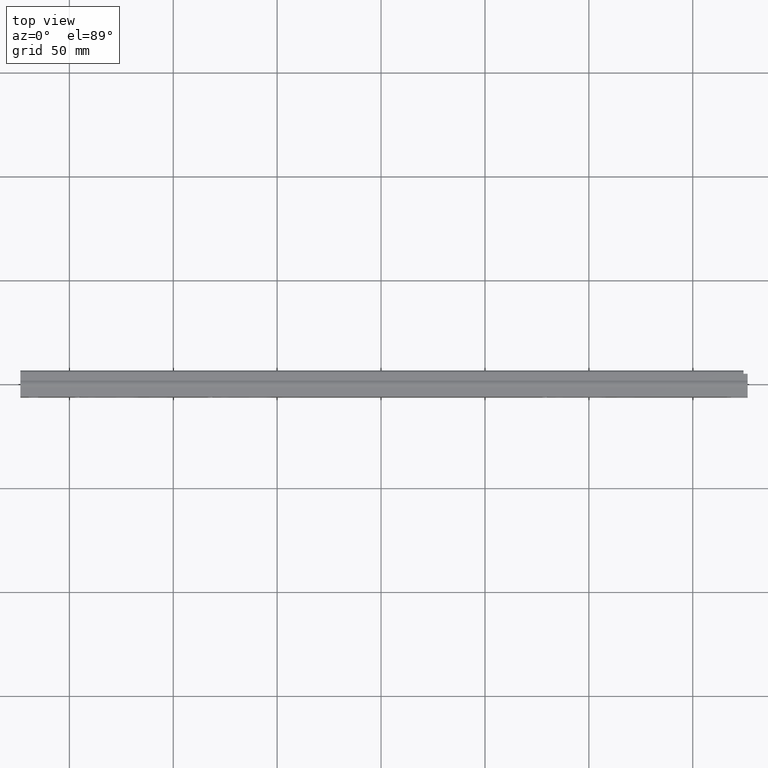
[diagram: clean part render]
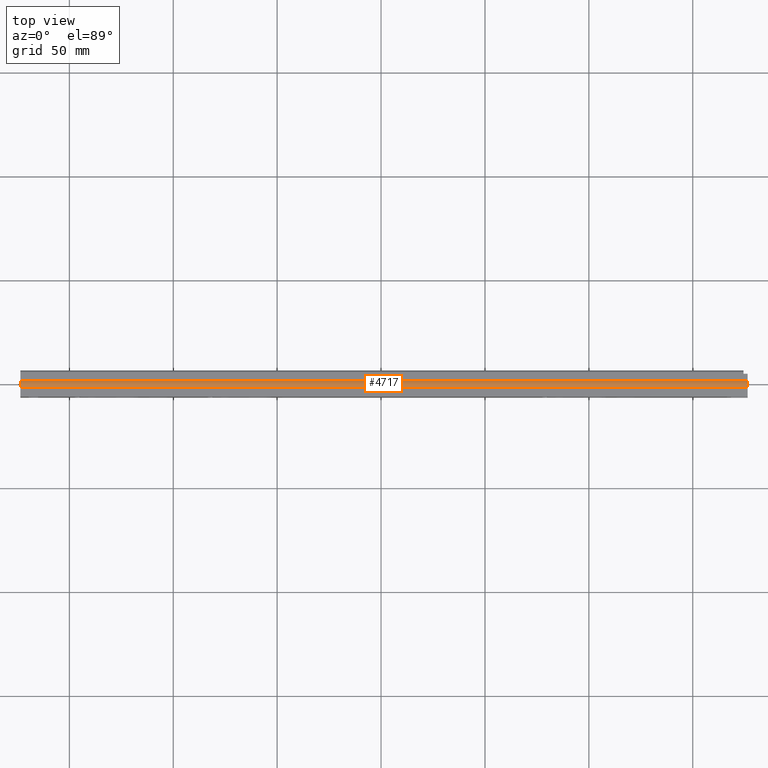
[diagram: same view with one face highlighted and labeled with its STEP entity id]
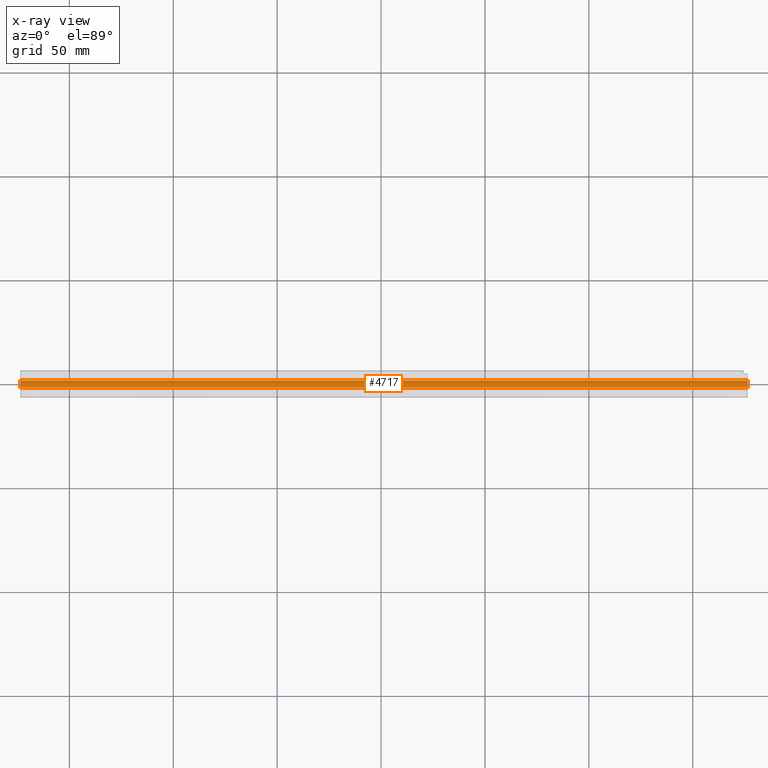
[diagram: x-ray of the same camera — body ghosted, the highlighted face saturated]
A machine part, top view. The second image highlights one B-rep face of the part: STEP entity #4717.
The next image is the same camera in x-ray: the body ghosted, the highlighted face saturated — about 0% of this face is hidden behind the body in this view.
In plain terms, the highlighted cylindrical surface (edge-blend (fillet) strip) has radius 2.9725 mm, axis along (1, 0, 0).
Its self-contained STEP definition (entity closure, byte-faithful):
#95=CYLINDRICAL_SURFACE('',#5056,2.9725);
#316=FACE_OUTER_BOUND('',#595,.T.);
#595=EDGE_LOOP('',(#3702,#3703,#3704,#3705));
#996=LINE('',#7327,#1494);
#997=LINE('',#7329,#1495);
#1494=VECTOR('',#5920,350.);
#1495=VECTOR('',#5923,350.);
#1843=CIRCLE('',#4966,2.9725);
#1848=CIRCLE('',#5053,2.9725);
#2142=VERTEX_POINT('',#7112);
#2143=VERTEX_POINT('',#7114);
#2160=VERTEX_POINT('',#7309);
#2161=VERTEX_POINT('',#7311);
#2623=EDGE_CURVE('',#2142,#2143,#1843,.T.);
#2720=EDGE_CURVE('',#2160,#2161,#1848,.T.);
#2728=EDGE_CURVE('',#2160,#2143,#996,.T.);
#2729=EDGE_CURVE('',#2161,#2142,#997,.T.);
#3702=ORIENTED_EDGE('',*,*,#2728,.T.);
#3703=ORIENTED_EDGE('',*,*,#2623,.F.);
#3704=ORIENTED_EDGE('',*,*,#2729,.F.);
#3705=ORIENTED_EDGE('',*,*,#2720,.F.);
#4717=ADVANCED_FACE('',(#316),#95,.T.);
#4966=AXIS2_PLACEMENT_3D('',#7115,#5642,#5643);
#5053=AXIS2_PLACEMENT_3D('',#7312,#5908,#5909);
#5056=AXIS2_PLACEMENT_3D('',#7328,#5921,#5922);
#5642=DIRECTION('center_axis',(1.,0.,0.));
#5643=DIRECTION('ref_axis',(0.,0.555088309503784,0.83179142136249));
#5908=DIRECTION('center_axis',(-1.,0.,0.));
#5909=DIRECTION('ref_axis',(0.,0.555088309503784,0.83179142136249));
#5920=DIRECTION('',(1.,0.,0.));
#5921=DIRECTION('center_axis',(1.,0.,0.));
#5922=DIRECTION('ref_axis',(0.,0.555088309503784,0.83179142136249));
#5923=DIRECTION('',(1.,0.,0.));
#7112=CARTESIAN_POINT('',(175.,7.65,17.));
#7114=CARTESIAN_POINT('',(175.,4.35000000000001,17.));
#7115=CARTESIAN_POINT('Origin',(175.,6.00000000000001,14.5275));
#7309=CARTESIAN_POINT('',(-175.,4.35000000000001,17.));
#7311=CARTESIAN_POINT('',(-175.,7.65,17.));
#7312=CARTESIAN_POINT('Origin',(-175.,6.00000000000001,14.5275));
#7327=CARTESIAN_POINT('',(0.,4.35000000000001,17.));
#7328=CARTESIAN_POINT('Origin',(0.,6.00000000000001,14.5275));
#7329=CARTESIAN_POINT('',(0.,7.65,17.));